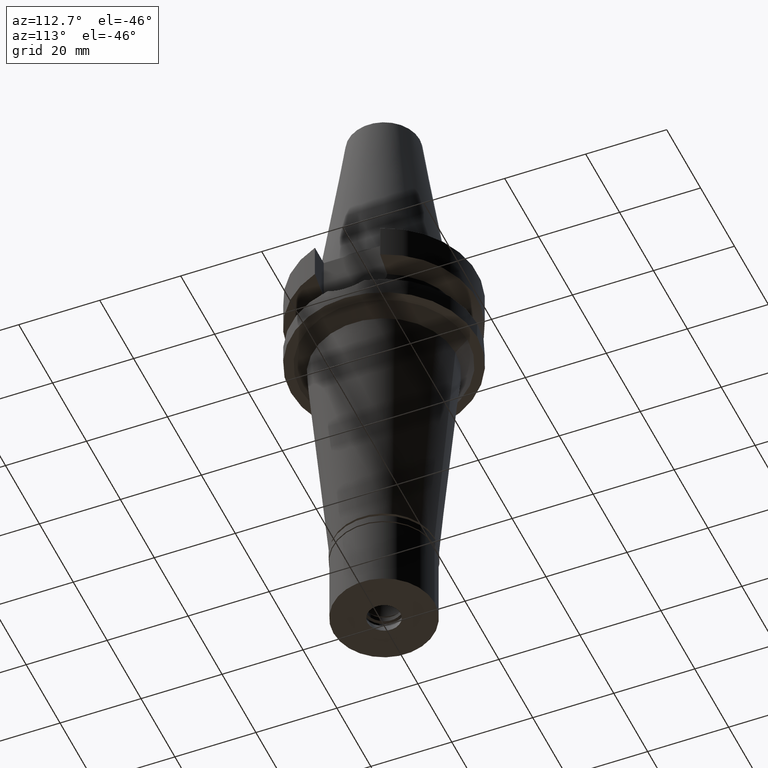
[diagram: clean part render]
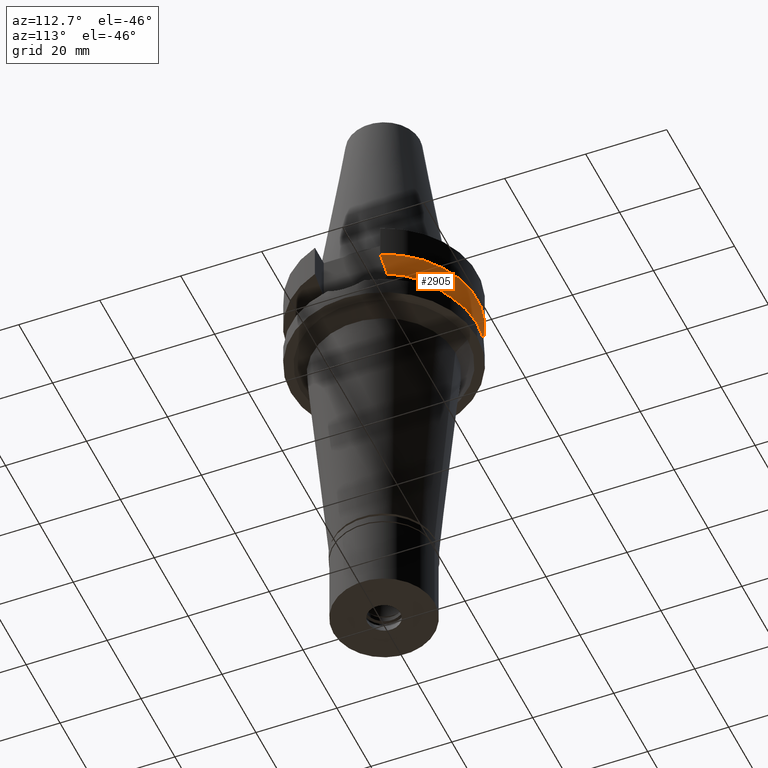
[diagram: same view with one face highlighted and labeled with its STEP entity id]
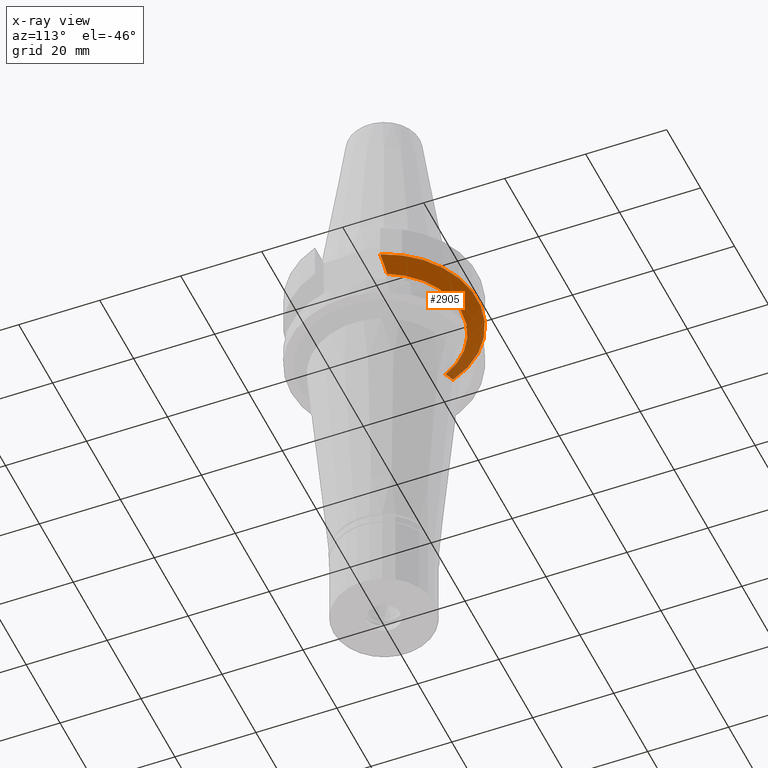
[diagram: x-ray of the same camera — body ghosted, the highlighted face saturated]
A machine part, auxiliary view. The second image highlights one B-rep face of the part: STEP entity #2905.
The next image is the same camera in x-ray: the body ghosted, the highlighted face saturated — about 9% of this face is hidden behind the body in this view.
In plain terms, the highlighted conical surface has half-angle 60 deg.
Its self-contained STEP definition (entity closure, byte-faithful):
#29 = CARTESIAN_POINT ( 'NONE',  ( -17.23531135310999929, 7.996501749182001184, -11.87660739352000050 ) ) ;
#58 = CARTESIAN_POINT ( 'NONE',  ( 17.23531622902000038, 7.996491146276001771, -11.87660607782000000 ) ) ;
#101 = EDGE_CURVE ( 'NONE', #2682, #3003, #1395, .T. ) ;
#166 = DIRECTION ( 'NONE',  ( -0.9071218755693948310, 0.4208680349746975469, 0.0000000000000000000 ) ) ;
#179 = CARTESIAN_POINT ( 'NONE',  ( 17.23531622902000038, 7.996491146276001771, -11.87660607782000000 ) ) ;
#205 = B_SPLINE_CURVE_WITH_KNOTS ( 'NONE', 3,
 ( #2869, #1679, #289, #29 ),
 .UNSPECIFIED., .F., .F.,
 ( 4, 4 ),
 ( 0.0000000000000000000, 1.000000000000000000 ),
 .UNSPECIFIED. ) ;
#244 = AXIS2_PLACEMENT_3D ( 'NONE', #1607, #629, #2549 ) ;
#289 = CARTESIAN_POINT ( 'NONE',  ( -17.72682660245077813, 8.027186146720495685, -11.61172867191410418 ) ) ;
#380 = CARTESIAN_POINT ( 'NONE',  ( -19.78176599729541962, 8.050001299788625886, -10.51717224217188473 ) ) ;
#394 = DIRECTION ( 'NONE',  ( 0.0000000000000000000, 1.000000000000000000, 0.0000000000000000000 ) ) ;
#469 = AXIS2_PLACEMENT_3D ( 'NONE', #2054, #1337, #166 ) ;
#494 = CARTESIAN_POINT ( 'NONE',  ( -20.64102060459518029, 8.050004185766381326, -10.05624058887161532 ) ) ;
#629 = DIRECTION ( 'NONE',  ( 0.0000000000000000000, 0.0000000000000000000, 1.000000000000000000 ) ) ;
#665 = DIRECTION ( 'NONE',  ( 0.0000000000000000000, 0.0000000000000000000, 1.000000000000000000 ) ) ;
#826 = CIRCLE ( 'NONE', #469, 19.00000000000000000 ) ;
#874 = CARTESIAN_POINT ( 'NONE',  ( 0.0000000000000000000, 0.0000000000000000000, -9.567208369710998639 ) ) ;
#1075 = CARTESIAN_POINT ( 'NONE',  ( 18.96738966530000070, 8.049994318182998043, -10.95000099923000114 ) ) ;
#1087 = VERTEX_POINT ( 'NONE', #2250 ) ;
#1125 = ORIENTED_EDGE ( 'NONE', *, *, #2320, .F. ) ;
#1132 = CARTESIAN_POINT ( 'NONE',  ( 18.96738966530000070, 8.049994318182998043, -10.95000099923000114 ) ) ;
#1195 = CARTESIAN_POINT ( 'NONE',  ( -21.54524231189000005, 8.050002094537999753, -9.567194606710000215 ) ) ;
#1306 = CARTESIAN_POINT ( 'NONE',  ( 19.78174442298433533, 8.049991903556987793, -10.51718567366341262 ) ) ;
#1337 = DIRECTION ( 'NONE',  ( 0.0000000000000000000, 0.0000000000000000000, -1.000000000000000000 ) ) ;
#1340 = ORIENTED_EDGE ( 'NONE', *, *, #1414, .T. ) ;
#1391 = EDGE_CURVE ( 'NONE', #1087, #2682, #826, .T. ) ;
#1395 = B_SPLINE_CURVE_WITH_KNOTS ( 'NONE', 3,
 ( #58, #2912, #1974, #1730 ),
 .UNSPECIFIED., .F., .F.,
 ( 4, 4 ),
 ( 0.0000000000000000000, 1.000000000000000000 ),
 .UNSPECIFIED. ) ;
#1414 = EDGE_CURVE ( 'NONE', #2603, #2930, #2532, .T. ) ;
#1577 = ORIENTED_EDGE ( 'NONE', *, *, #1391, .F. ) ;
#1588 = CARTESIAN_POINT ( 'NONE',  ( -18.96736186674000280, 8.050001277723000115, -10.94999977542999936 ) ) ;
#1596 = CARTESIAN_POINT ( 'NONE',  ( 21.54524325238000060, 8.049999577379001181, -9.567211146543000311 ) ) ;
#1607 = CARTESIAN_POINT ( 'NONE',  ( 0.0000000000000000000, 0.0000000000000000000, -10.72190890808999875 ) ) ;
#1620 = FACE_OUTER_BOUND ( 'NONE', #1738, .T. ) ;
#1679 = CARTESIAN_POINT ( 'NONE',  ( -18.30417677366077811, 8.050000009832531944, -11.30245974016199106 ) ) ;
#1730 = CARTESIAN_POINT ( 'NONE',  ( 18.96738966530000070, 8.049994318182998043, -10.95000099923000114 ) ) ;
#1738 = EDGE_LOOP ( 'NONE', ( #1125, #1770, #1809, #1577, #2161, #1340 ) ) ;
#1770 = ORIENTED_EDGE ( 'NONE', *, *, #2637, .T. ) ;
#1809 = ORIENTED_EDGE ( 'NONE', *, *, #101, .F. ) ;
#1892 = EDGE_CURVE ( 'NONE', #2603, #1087, #205, .T. ) ;
#1974 = CARTESIAN_POINT ( 'NONE',  ( 18.30334767960350817, 8.049999956193227391, -11.30291651801537789 ) ) ;
#2054 = CARTESIAN_POINT ( 'NONE',  ( 0.0000000000000000000, 0.0000000000000000000, -11.87660944646999894 ) ) ;
#2083 = CARTESIAN_POINT ( 'NONE',  ( 20.64098922513857204, 8.049999155450739963, -10.05625859774404063 ) ) ;
#2112 = CARTESIAN_POINT ( 'NONE',  ( -18.96736186674000280, 8.050001277723000115, -10.94999977542999936 ) ) ;
#2161 = ORIENTED_EDGE ( 'NONE', *, *, #1892, .F. ) ;
#2250 = CARTESIAN_POINT ( 'NONE',  ( -17.23531135310999929, 7.996501749182001184, -11.87660739352000050 ) ) ;
#2318 = VERTEX_POINT ( 'NONE', #2780 ) ;
#2320 = EDGE_CURVE ( 'NONE', #2318, #2930, #2704, .T. ) ;
#2477 = B_SPLINE_CURVE_WITH_KNOTS ( 'NONE', 3,
 ( #1596, #2083, #1306, #1132 ),
 .UNSPECIFIED., .F., .F.,
 ( 4, 4 ),
 ( 0.0000000000000000000, 1.000000000000000000 ),
 .UNSPECIFIED. ) ;
#2525 = CONICAL_SURFACE ( 'NONE', #244, 21.00000000000000000, 1.047197551196400456 ) ;
#2532 = B_SPLINE_CURVE_WITH_KNOTS ( 'NONE', 3,
 ( #1588, #380, #494, #1195 ),
 .UNSPECIFIED., .F., .F.,
 ( 4, 4 ),
 ( 0.0000000000000000000, 1.000000000000000000 ),
 .UNSPECIFIED. ) ;
#2549 = DIRECTION ( 'NONE',  ( 0.0000000000000000000, 1.000000000000000000, 0.0000000000000000000 ) ) ;
#2563 = CARTESIAN_POINT ( 'NONE',  ( -21.54524231189000005, 8.050002094537999753, -9.567194606710000215 ) ) ;
#2603 = VERTEX_POINT ( 'NONE', #2112 ) ;
#2637 = EDGE_CURVE ( 'NONE', #2318, #3003, #2477, .T. ) ;
#2682 = VERTEX_POINT ( 'NONE', #179 ) ;
#2704 = CIRCLE ( 'NONE', #3005, 23.00000000000000000 ) ;
#2780 = CARTESIAN_POINT ( 'NONE',  ( 21.54524325238000060, 8.049999577379001181, -9.567211146543000311 ) ) ;
#2869 = CARTESIAN_POINT ( 'NONE',  ( -18.96736186674000280, 8.050001277723000115, -10.94999977542999936 ) ) ;
#2905 = ADVANCED_FACE ( 'NONE', ( #1620 ), #2525, .T. ) ;
#2912 = CARTESIAN_POINT ( 'NONE',  ( 17.72598986751017236, 8.027133616107310132, -11.61218197945228070 ) ) ;
#2930 = VERTEX_POINT ( 'NONE', #2563 ) ;
#3003 = VERTEX_POINT ( 'NONE', #1075 ) ;
#3005 = AXIS2_PLACEMENT_3D ( 'NONE', #874, #665, #394 ) ;